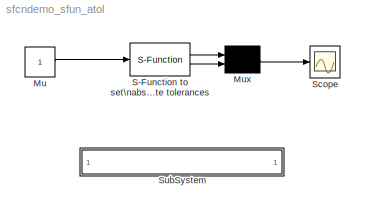
MODEL sfcndemo_sfun_atol
KIND model
BLOCK [Constant] Mu
BLOCK [Mux] Mux
  Inputs = 2
  Ports = [2, 1]
BLOCK [S-Function] S-Function to set\nabsolute tolerances
  FunctionName = sfun_atol
  MaskCallbackString = |
  MaskDescription = This S-function allows the user to set the absolute tolerance for each continuous state.  In this case there are two continous states whose absolute tolerances can be set using parameters.
  MaskDisplay = disp('sfun_atol')
  MaskEnableString = on,on
  MaskIconFrame = on
  MaskIconOpaque = on
  MaskIconRotate = none
  MaskIconUnits = autoscale
  MaskPromptString = AbsTol[0]:|AbsTol[1]
  MaskStyleString = edit,edit
  MaskTabNameString = ,
  MaskToolTipString = on,on
  MaskTunableValueString = on,on
  MaskValueString = 1.0e-6|1.0e-6
  MaskVarAliasString = ,
  MaskVariables = abstol0=@1;abstol1=@2;
  MaskVisibilityString = on,on
  Parameters = abstol0 abstol1
  Ports = [1, 2]
BLOCK [Scope] Scope
  DataFormat = StructureWithTime
  NumInputPorts = 1
  Ports = [1]
  ZoomMode = yonly
BLOCK [SubSystem] SubSystem
  MaskDisplay = disp('matlabroot<path>');
  MaskIconFrame = on
  MaskIconOpaque = on
  MaskIconRotate = none
  MaskIconUnits = autoscale
  MinAlgLoopOccurrences = off
  OpenFcn = edit(fullfile(matlabroot,'simulink','src','sfun_atol.c'))
  Ports = []
  PropExecContextAcrossSSBoundary = on
  RTWSystemCode = Auto
  TreatAsAtomicUnit = off
LINE Mu:1 -> S-Function to set\nabsolute tolerances:1
LINE Mux:1 -> Scope:1
LINE S-Function to set\nabsolute tolerances:1 -> Mux:1
LINE S-Function to set\nabsolute tolerances:2 -> Mux:2
note: 1 file-system path scrubbed to <path> (not preserved elsewhere — flat text is the only slx artifact)
